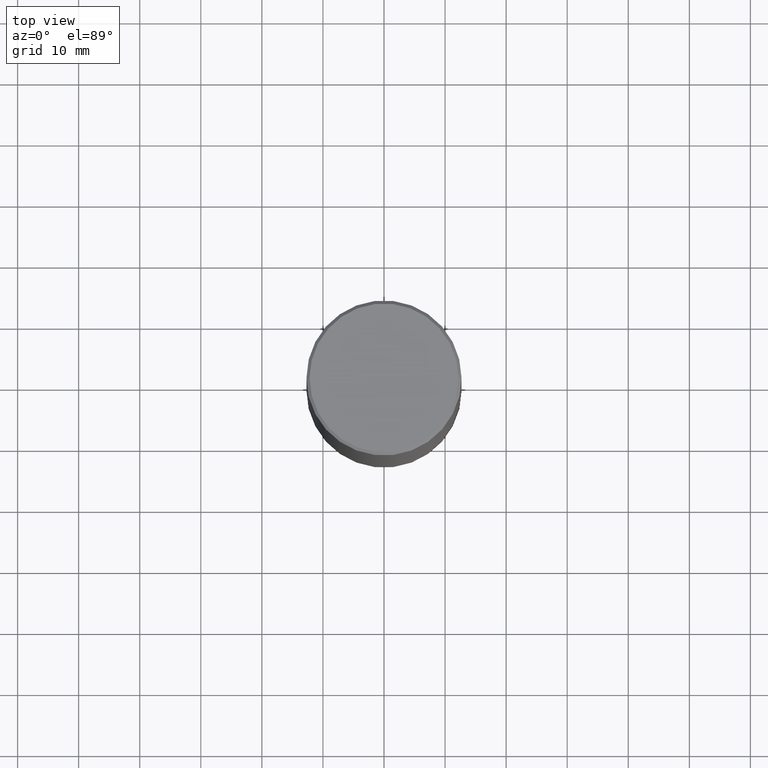
[diagram: clean part render]
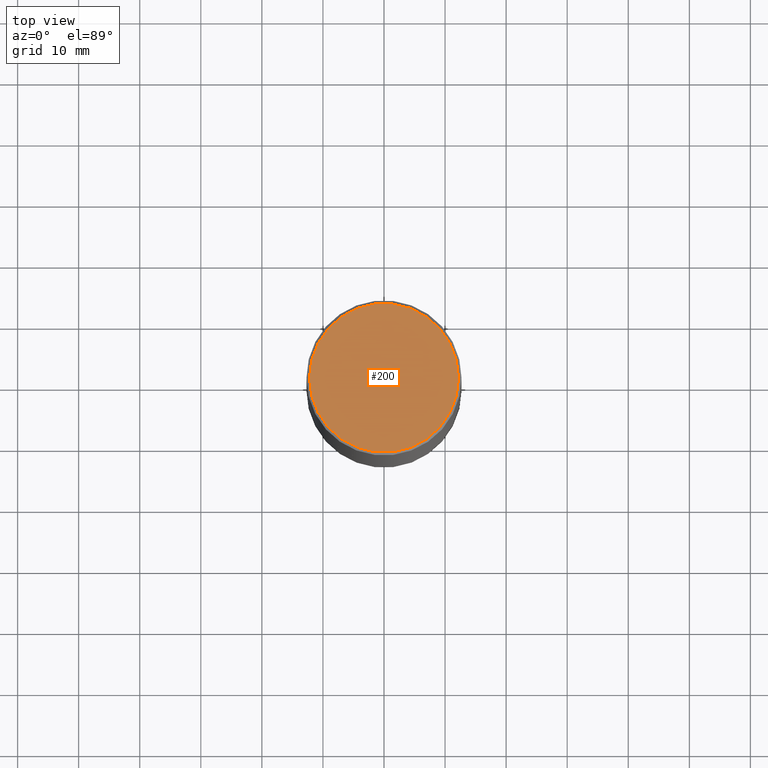
[diagram: same view with one face highlighted and labeled with its STEP entity id]
A machine part, top view. The second image highlights one B-rep face of the part: STEP entity #200.
In plain terms, the highlighted planar face has unit normal (0, -0, -1).
Its self-contained STEP definition (entity closure, byte-faithful):
#10 = DIRECTION ( 'NONE',  ( 1.000000000000000000, -6.982962677686266711E-15, 4.876036955247133327E-29 ) ) ;
#11 = EDGE_CURVE ( 'NONE', #288, #324, #269, .T. ) ;
#59 = CARTESIAN_POINT ( 'NONE',  ( 0.4799999999999995937, -3.396558832296479732E-15, 1.280553747032483033E-17 ) ) ;
#83 = EDGE_CURVE ( 'NONE', #324, #288, #212, .T. ) ;
#95 = DIRECTION ( 'NONE',  ( 1.000000000000000000, -6.982962677686266711E-15, 4.876036955247133327E-29 ) ) ;
#100 = FACE_OUTER_BOUND ( 'NONE', #267, .T. ) ;
#128 = CARTESIAN_POINT ( 'NONE',  ( -3.131554243005659264E-46, 4.471029511141341874E-32, 1.280553747030123384E-17 ) ) ;
#140 = AXIS2_PLACEMENT_3D ( 'NONE', #153, #241, #95 ) ;
#151 = ORIENTED_EDGE ( 'NONE', *, *, #11, .T. ) ;
#153 = CARTESIAN_POINT ( 'NONE',  ( -3.131554243005659264E-46, 4.471029511141341874E-32, 1.280553747030123384E-17 ) ) ;
#200 = ADVANCED_FACE ( 'NONE', ( #100 ), #306, .F. ) ;
#212 = CIRCLE ( 'NONE', #345, 0.4799999999999995937 ) ;
#240 = DIRECTION ( 'NONE',  ( -2.445468806185136597E-29, 3.491481338843145583E-15, 1.000000000000000000 ) ) ;
#241 = DIRECTION ( 'NONE',  ( -2.445468806185136597E-29, 3.491481338843145583E-15, 1.000000000000000000 ) ) ;
#267 = EDGE_LOOP ( 'NONE', ( #151, #299 ) ) ;
#269 = CIRCLE ( 'NONE', #140, 0.4799999999999995937 ) ;
#274 = CARTESIAN_POINT ( 'NONE',  ( 3.351822085289404787E-15, 0.4799999999999995937, -1.669508273909557867E-15 ) ) ;
#276 = DIRECTION ( 'NONE',  ( -1.000000000000000000, 6.982962677686265922E-15, -4.876176775795935793E-29 ) ) ;
#288 = VERTEX_POINT ( 'NONE', #313 ) ;
#299 = ORIENTED_EDGE ( 'NONE', *, *, #83, .T. ) ;
#306 = PLANE ( 'NONE',  #307 ) ;
#307 = AXIS2_PLACEMENT_3D ( 'NONE', #274, #327, #276 ) ;
#313 = CARTESIAN_POINT ( 'NONE',  ( -0.4799999999999995937, 3.386736898677836436E-15, 1.280553747027767124E-17 ) ) ;
#324 = VERTEX_POINT ( 'NONE', #59 ) ;
#327 = DIRECTION ( 'NONE',  ( 2.438088387897960049E-29, -3.491481338843145188E-15, -1.000000000000000000 ) ) ;
#345 = AXIS2_PLACEMENT_3D ( 'NONE', #128, #240, #10 ) ;